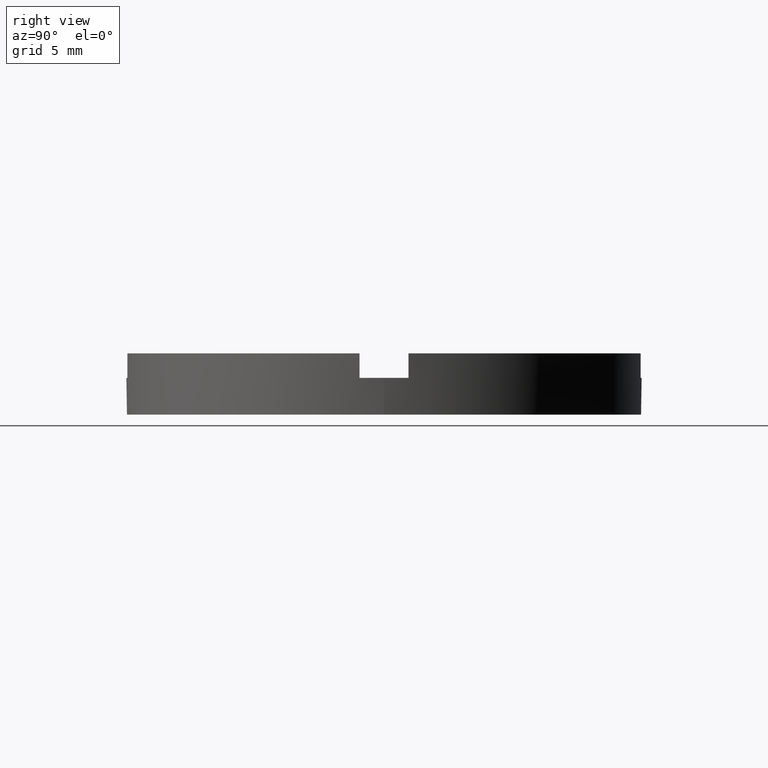
[diagram: clean part render]
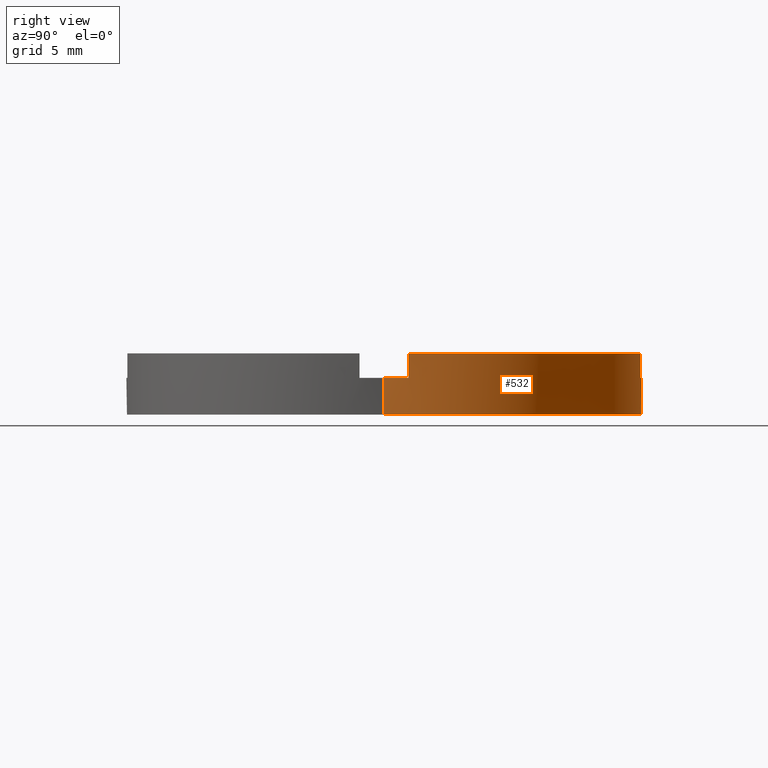
[diagram: same view with one face highlighted and labeled with its STEP entity id]
A machine part, right view. The second image highlights one B-rep face of the part: STEP entity #532.
In plain terms, the highlighted cylindrical surface (partial cylindrical patch) has radius 10.5 mm, axis along (-0, -0, -1).
Its self-contained STEP definition (entity closure, byte-faithful):
#1 = CIRCLE ( 'NONE', #500, 10.50000000000000178 ) ;
#6 = EDGE_CURVE ( 'NONE', #219, #714, #130, .T. ) ;
#22 = AXIS2_PLACEMENT_3D ( 'NONE', #419, #639, #114 ) ;
#23 = DIRECTION ( 'NONE',  ( 1.000000000000000000, 0.000000000000000000, 0.000000000000000000 ) ) ;
#52 = CARTESIAN_POINT ( 'NONE',  ( -10.45227248018344213, 0.9999999999999783507, 2.500000000000000000 ) ) ;
#53 = CARTESIAN_POINT ( 'NONE',  ( 0.000000000000000000, 0.000000000000000000, 1.500000000000000000 ) ) ;
#65 = CARTESIAN_POINT ( 'NONE',  ( -1.000000000000023981, 10.45227248018343502, 2.500000000000000000 ) ) ;
#89 = CARTESIAN_POINT ( 'NONE',  ( 0.000000000000000000, 0.000000000000000000, 1.500000000000000000 ) ) ;
#90 = CARTESIAN_POINT ( 'NONE',  ( 10.45227248018345279, 0.9999999999998411271, 2.500000000000000000 ) ) ;
#99 = VECTOR ( 'NONE', #772, 1000.000000000000000 ) ;
#101 = DIRECTION ( 'NONE',  ( 0.000000000000000000, 0.000000000000000000, 1.000000000000000000 ) ) ;
#105 = DIRECTION ( 'NONE',  ( 0.000000000000000000, -0.000000000000000000, 1.000000000000000000 ) ) ;
#114 = DIRECTION ( 'NONE',  ( 1.000000000000000000, 0.000000000000000000, 0.000000000000000000 ) ) ;
#127 = VERTEX_POINT ( 'NONE', #90 ) ;
#130 = LINE ( 'NONE', #299, #373 ) ;
#141 = ORIENTED_EDGE ( 'NONE', *, *, #284, .T. ) ;
#146 = VERTEX_POINT ( 'NONE', #288 ) ;
#152 = EDGE_CURVE ( 'NONE', #444, #146, #354, .T. ) ;
#159 = ORIENTED_EDGE ( 'NONE', *, *, #408, .F. ) ;
#170 = ORIENTED_EDGE ( 'NONE', *, *, #152, .T. ) ;
#174 = ORIENTED_EDGE ( 'NONE', *, *, #388, .T. ) ;
#176 = ORIENTED_EDGE ( 'NONE', *, *, #461, .F. ) ;
#178 = CARTESIAN_POINT ( 'NONE',  ( 10.50000000000000178, 1.285879139104721028E-15, 1.500000000000000000 ) ) ;
#195 = ORIENTED_EDGE ( 'NONE', *, *, #560, .T. ) ;
#196 = ORIENTED_EDGE ( 'NONE', *, *, #359, .F. ) ;
#202 = VERTEX_POINT ( 'NONE', #753 ) ;
#219 = VERTEX_POINT ( 'NONE', #520 ) ;
#259 = FACE_OUTER_BOUND ( 'NONE', #376, .T. ) ;
#268 = CYLINDRICAL_SURFACE ( 'NONE', #615, 10.50000000000000178 ) ;
#269 = CIRCLE ( 'NONE', #321, 10.50000000000000178 ) ;
#272 = DIRECTION ( 'NONE',  ( -0.000000000000000000, 0.000000000000000000, 1.000000000000000000 ) ) ;
#284 = EDGE_CURVE ( 'NONE', #428, #202, #348, .T. ) ;
#288 = CARTESIAN_POINT ( 'NONE',  ( 10.50000000000000178, 1.285879139104721028E-15, 0.000000000000000000 ) ) ;
#299 = CARTESIAN_POINT ( 'NONE',  ( -10.50000000000000178, 0.000000000000000000, 2.500000000000000000 ) ) ;
#303 = DIRECTION ( 'NONE',  ( -0.000000000000000000, -0.000000000000000000, -1.000000000000000000 ) ) ;
#305 = DIRECTION ( 'NONE',  ( -0.000000000000000000, -0.000000000000000000, -1.000000000000000000 ) ) ;
#313 = CARTESIAN_POINT ( 'NONE',  ( 0.000000000000000000, 0.000000000000000000, 2.500000000000000000 ) ) ;
#318 = EDGE_CURVE ( 'NONE', #642, #407, #526, .T. ) ;
#321 = AXIS2_PLACEMENT_3D ( 'NONE', #587, #648, #735 ) ;
#328 = AXIS2_PLACEMENT_3D ( 'NONE', #53, #616, #575 ) ;
#335 = EDGE_CURVE ( 'NONE', #127, #377, #524, .T. ) ;
#344 = VECTOR ( 'NONE', #599, 1000.000000000000000 ) ;
#348 = LINE ( 'NONE', #363, #344 ) ;
#351 = DIRECTION ( 'NONE',  ( -0.000000000000000000, -0.000000000000000000, -1.000000000000000000 ) ) ;
#354 = LINE ( 'NONE', #403, #99 ) ;
#359 = EDGE_CURVE ( 'NONE', #444, #377, #1, .T. ) ;
#360 = DIRECTION ( 'NONE',  ( -0.000000000000000000, -0.000000000000000000, -1.000000000000000000 ) ) ;
#363 = CARTESIAN_POINT ( 'NONE',  ( 0.9999999999999756861, 10.45227248018344035, 2.500000000000000000 ) ) ;
#367 = VERTEX_POINT ( 'NONE', #65 ) ;
#373 = VECTOR ( 'NONE', #305, 1000.000000000000000 ) ;
#376 = EDGE_LOOP ( 'NONE', ( #196, #170, #174, #431, #176, #694, #686, #195, #378, #141, #159, #687 ) ) ;
#377 = VERTEX_POINT ( 'NONE', #742 ) ;
#378 = ORIENTED_EDGE ( 'NONE', *, *, #496, .F. ) ;
#388 = EDGE_CURVE ( 'NONE', #146, #714, #269, .T. ) ;
#403 = CARTESIAN_POINT ( 'NONE',  ( 10.50000000000000178, 1.285879139104721028E-15, 2.500000000000000000 ) ) ;
#407 = VERTEX_POINT ( 'NONE', #544 ) ;
#408 = EDGE_CURVE ( 'NONE', #127, #202, #771, .T. ) ;
#419 = CARTESIAN_POINT ( 'NONE',  ( 0.000000000000000000, 0.000000000000000000, 2.500000000000000000 ) ) ;
#428 = VERTEX_POINT ( 'NONE', #476 ) ;
#431 = ORIENTED_EDGE ( 'NONE', *, *, #6, .F. ) ;
#435 = CARTESIAN_POINT ( 'NONE',  ( 0.000000000000000000, 0.000000000000000000, 1.500000000000000000 ) ) ;
#444 = VERTEX_POINT ( 'NONE', #178 ) ;
#461 = EDGE_CURVE ( 'NONE', #642, #219, #527, .T. ) ;
#469 = DIRECTION ( 'NONE',  ( -1.000000000000000000, 0.000000000000000000, 0.000000000000000000 ) ) ;
#476 = CARTESIAN_POINT ( 'NONE',  ( 0.9999999999999753530, 10.45227248018343857, 1.500000000000000000 ) ) ;
#484 = CARTESIAN_POINT ( 'NONE',  ( 0.000000000000000000, 0.000000000000000000, 2.500000000000000000 ) ) ;
#495 = VECTOR ( 'NONE', #101, 1000.000000000000000 ) ;
#496 = EDGE_CURVE ( 'NONE', #428, #698, #516, .T. ) ;
#500 = AXIS2_PLACEMENT_3D ( 'NONE', #435, #272, #23 ) ;
#504 = CARTESIAN_POINT ( 'NONE',  ( -1.000000000000023981, 10.45227248018343502, 1.500000000000000000 ) ) ;
#507 = LINE ( 'NONE', #553, #754 ) ;
#516 = CIRCLE ( 'NONE', #547, 10.50000000000000178 ) ;
#518 = VECTOR ( 'NONE', #360, 1000.000000000000000 ) ;
#519 = CIRCLE ( 'NONE', #22, 10.50000000000000178 ) ;
#520 = CARTESIAN_POINT ( 'NONE',  ( -10.50000000000000178, 0.000000000000000000, 1.500000000000000000 ) ) ;
#524 = LINE ( 'NONE', #592, #518 ) ;
#526 = LINE ( 'NONE', #52, #495 ) ;
#527 = CIRCLE ( 'NONE', #328, 10.50000000000000178 ) ;
#532 = ADVANCED_FACE ( 'NONE', ( #259 ), #268, .T. ) ;
#537 = EDGE_CURVE ( 'NONE', #367, #407, #519, .T. ) ;
#544 = CARTESIAN_POINT ( 'NONE',  ( -10.45227248018344213, 0.9999999999999783507, 2.500000000000000000 ) ) ;
#547 = AXIS2_PLACEMENT_3D ( 'NONE', #89, #105, #584 ) ;
#553 = CARTESIAN_POINT ( 'NONE',  ( -1.000000000000024203, 10.45227248018343680, 2.500000000000000000 ) ) ;
#560 = EDGE_CURVE ( 'NONE', #367, #698, #507, .T. ) ;
#568 = AXIS2_PLACEMENT_3D ( 'NONE', #484, #613, #578 ) ;
#575 = DIRECTION ( 'NONE',  ( 1.000000000000000000, 0.000000000000000000, 0.000000000000000000 ) ) ;
#578 = DIRECTION ( 'NONE',  ( 1.000000000000000000, 0.000000000000000000, 0.000000000000000000 ) ) ;
#579 = CARTESIAN_POINT ( 'NONE',  ( -10.45227248018344213, 0.9999999999999783507, 1.500000000000000000 ) ) ;
#584 = DIRECTION ( 'NONE',  ( 1.000000000000000000, 0.000000000000000000, 0.000000000000000000 ) ) ;
#587 = CARTESIAN_POINT ( 'NONE',  ( 0.000000000000000000, 0.000000000000000000, 0.000000000000000000 ) ) ;
#592 = CARTESIAN_POINT ( 'NONE',  ( 10.45227248018345279, 0.9999999999998411271, 2.500000000000000000 ) ) ;
#599 = DIRECTION ( 'NONE',  ( 0.000000000000000000, 0.000000000000000000, 1.000000000000000000 ) ) ;
#613 = DIRECTION ( 'NONE',  ( 0.000000000000000000, 0.000000000000000000, 1.000000000000000000 ) ) ;
#615 = AXIS2_PLACEMENT_3D ( 'NONE', #313, #351, #469 ) ;
#616 = DIRECTION ( 'NONE',  ( 0.000000000000000000, 0.000000000000000000, 1.000000000000000000 ) ) ;
#639 = DIRECTION ( 'NONE',  ( 0.000000000000000000, 0.000000000000000000, 1.000000000000000000 ) ) ;
#642 = VERTEX_POINT ( 'NONE', #579 ) ;
#648 = DIRECTION ( 'NONE',  ( 0.000000000000000000, 0.000000000000000000, 1.000000000000000000 ) ) ;
#686 = ORIENTED_EDGE ( 'NONE', *, *, #537, .F. ) ;
#687 = ORIENTED_EDGE ( 'NONE', *, *, #335, .T. ) ;
#694 = ORIENTED_EDGE ( 'NONE', *, *, #318, .T. ) ;
#698 = VERTEX_POINT ( 'NONE', #504 ) ;
#714 = VERTEX_POINT ( 'NONE', #737 ) ;
#735 = DIRECTION ( 'NONE',  ( 1.000000000000000000, 0.000000000000000000, 0.000000000000000000 ) ) ;
#737 = CARTESIAN_POINT ( 'NONE',  ( -10.50000000000000178, 0.000000000000000000, 0.000000000000000000 ) ) ;
#742 = CARTESIAN_POINT ( 'NONE',  ( 10.45227248018345279, 0.9999999999998411271, 1.500000000000000000 ) ) ;
#753 = CARTESIAN_POINT ( 'NONE',  ( 0.9999999999999753530, 10.45227248018343857, 2.500000000000000000 ) ) ;
#754 = VECTOR ( 'NONE', #303, 1000.000000000000000 ) ;
#771 = CIRCLE ( 'NONE', #568, 10.50000000000000178 ) ;
#772 = DIRECTION ( 'NONE',  ( -0.000000000000000000, -0.000000000000000000, -1.000000000000000000 ) ) ;